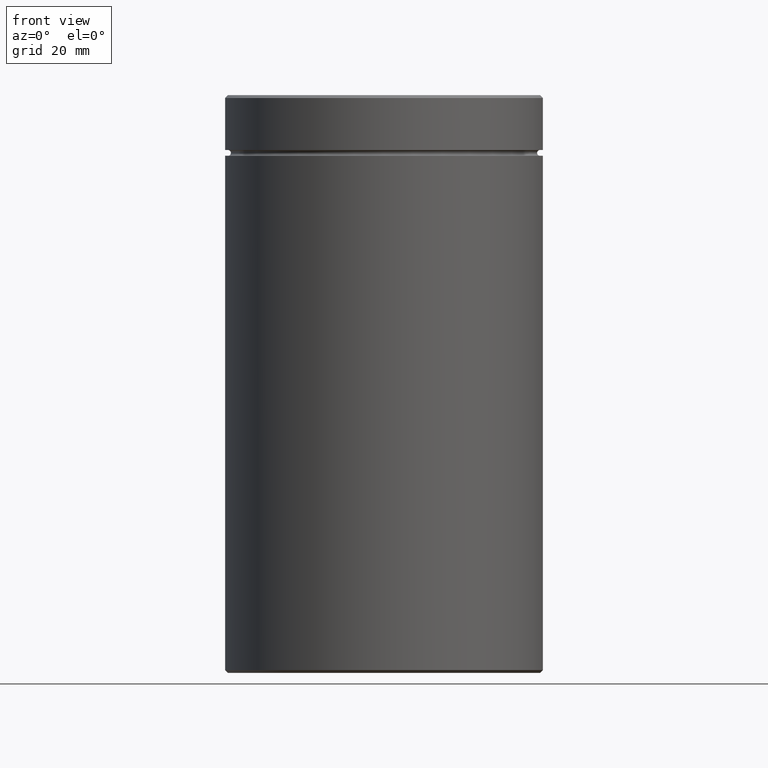
[diagram: clean part render]
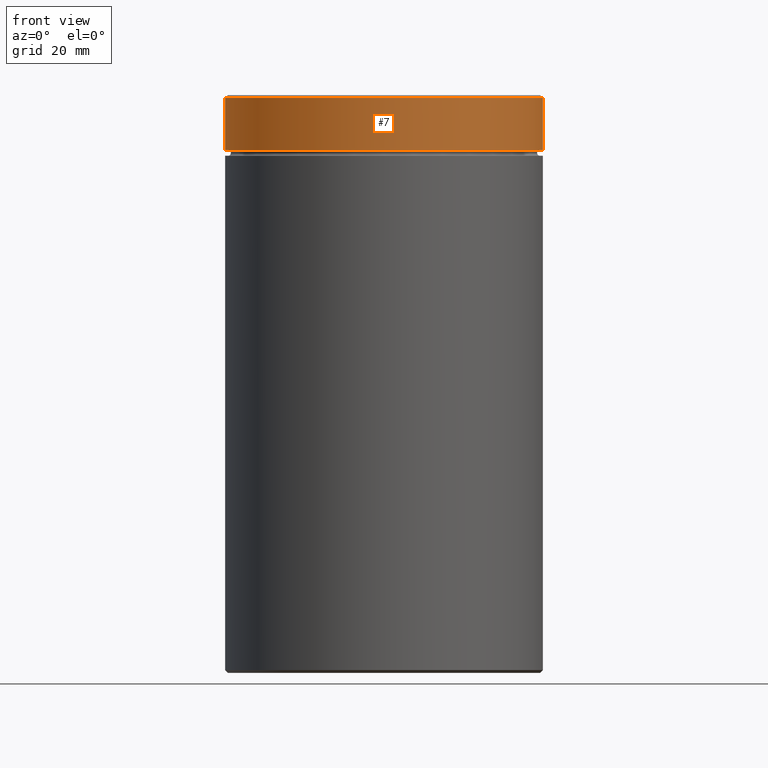
[diagram: same view with one face highlighted and labeled with its STEP entity id]
A machine part, front view. The second image highlights one B-rep face of the part: STEP entity #7.
In plain terms, the highlighted cylindrical surface (partial cylindrical patch) has radius 27.5 mm, axis along (-0, -0, 1).
Its self-contained STEP definition (entity closure, byte-faithful):
#7 = ADVANCED_FACE ( 'NONE', ( #13 ), #60, .T. ) ;
#13 = FACE_OUTER_BOUND ( 'NONE', #534, .T. ) ;
#38 = LINE ( 'NONE', #59, #427 ) ;
#59 = CARTESIAN_POINT ( 'NONE',  ( 27.50000000000000000, 0.000000000000000000, 0.000000000000000000 ) ) ;
#60 = CYLINDRICAL_SURFACE ( 'NONE', #139, 27.50000000000000000 ) ;
#94 = CARTESIAN_POINT ( 'NONE',  ( 0.000000000000000000, 0.000000000000000000, -0.5000000000000143219 ) ) ;
#103 = DIRECTION ( 'NONE',  ( 1.000000000000000000, 0.000000000000000000, 0.000000000000000000 ) ) ;
#123 = DIRECTION ( 'NONE',  ( 1.000000000000000000, 0.000000000000000000, 0.000000000000000000 ) ) ;
#125 = DIRECTION ( 'NONE',  ( -0.000000000000000000, -0.000000000000000000, 1.000000000000000000 ) ) ;
#129 = ORIENTED_EDGE ( 'NONE', *, *, #533, .T. ) ;
#139 = AXIS2_PLACEMENT_3D ( 'NONE', #368, #381, #103 ) ;
#146 = VERTEX_POINT ( 'NONE', #217 ) ;
#152 = VERTEX_POINT ( 'NONE', #215 ) ;
#172 = DIRECTION ( 'NONE',  ( -0.000000000000000000, -0.000000000000000000, 1.000000000000000000 ) ) ;
#173 = DIRECTION ( 'NONE',  ( 0.000000000000000000, 0.000000000000000000, -1.000000000000000000 ) ) ;
#183 = CARTESIAN_POINT ( 'NONE',  ( 0.000000000000000000, 0.000000000000000000, -9.500000000000000000 ) ) ;
#215 = CARTESIAN_POINT ( 'NONE',  ( 27.50000000000000000, 0.000000000000000000, -9.500000000000000000 ) ) ;
#217 = CARTESIAN_POINT ( 'NONE',  ( 27.50000000000000000, 0.000000000000000000, -0.5000000000000143219 ) ) ;
#222 = VECTOR ( 'NONE', #125, 1000.000000000000000 ) ;
#224 = ORIENTED_EDGE ( 'NONE', *, *, #421, .T. ) ;
#242 = DIRECTION ( 'NONE',  ( -0.000000000000000000, -0.000000000000000000, 1.000000000000000000 ) ) ;
#269 = DIRECTION ( 'NONE',  ( 1.000000000000000000, 0.000000000000000000, 0.000000000000000000 ) ) ;
#270 = CIRCLE ( 'NONE', #540, 27.50000000000000000 ) ;
#275 = ORIENTED_EDGE ( 'NONE', *, *, #492, .F. ) ;
#308 = CIRCLE ( 'NONE', #507, 27.50000000000000000 ) ;
#352 = LINE ( 'NONE', #520, #222 ) ;
#368 = CARTESIAN_POINT ( 'NONE',  ( 0.000000000000000000, 0.000000000000000000, 0.000000000000000000 ) ) ;
#378 = VERTEX_POINT ( 'NONE', #509 ) ;
#381 = DIRECTION ( 'NONE',  ( -0.000000000000000000, -0.000000000000000000, 1.000000000000000000 ) ) ;
#401 = CARTESIAN_POINT ( 'NONE',  ( -27.50000000000000000, 3.367778697655221307E-15, -9.500000000000000000 ) ) ;
#421 = EDGE_CURVE ( 'NONE', #488, #152, #270, .T. ) ;
#427 = VECTOR ( 'NONE', #242, 1000.000000000000000 ) ;
#475 = EDGE_CURVE ( 'NONE', #146, #378, #308, .T. ) ;
#488 = VERTEX_POINT ( 'NONE', #401 ) ;
#492 = EDGE_CURVE ( 'NONE', #488, #378, #352, .T. ) ;
#507 = AXIS2_PLACEMENT_3D ( 'NONE', #94, #173, #269 ) ;
#509 = CARTESIAN_POINT ( 'NONE',  ( -27.50000000000000000, 3.367778697655221307E-15, -0.5000000000000143219 ) ) ;
#520 = CARTESIAN_POINT ( 'NONE',  ( -27.50000000000000000, 3.367778697655221307E-15, 0.000000000000000000 ) ) ;
#533 = EDGE_CURVE ( 'NONE', #152, #146, #38, .T. ) ;
#534 = EDGE_LOOP ( 'NONE', ( #275, #224, #129, #538 ) ) ;
#538 = ORIENTED_EDGE ( 'NONE', *, *, #475, .T. ) ;
#540 = AXIS2_PLACEMENT_3D ( 'NONE', #183, #172, #123 ) ;